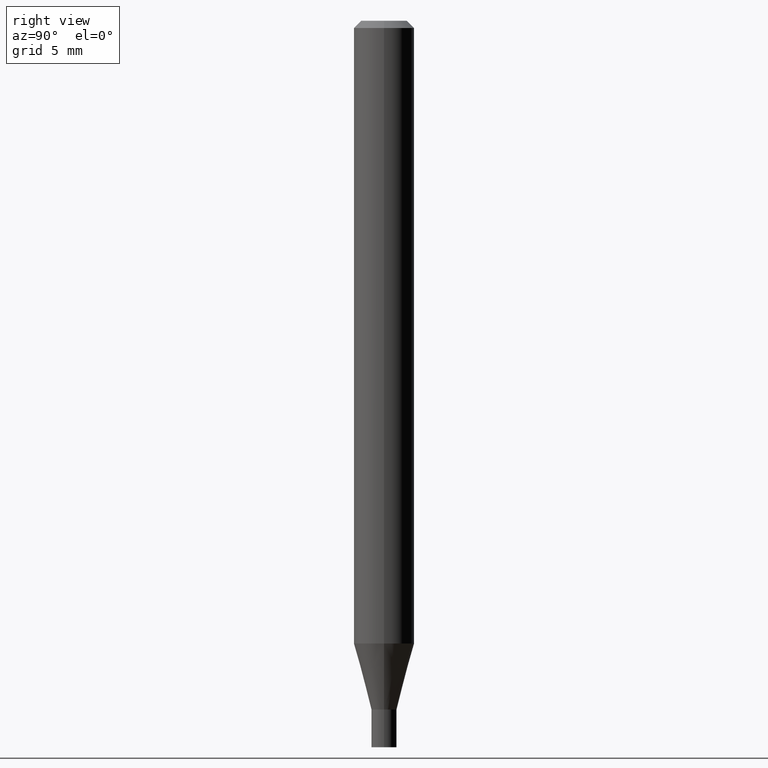
[diagram: clean part render]
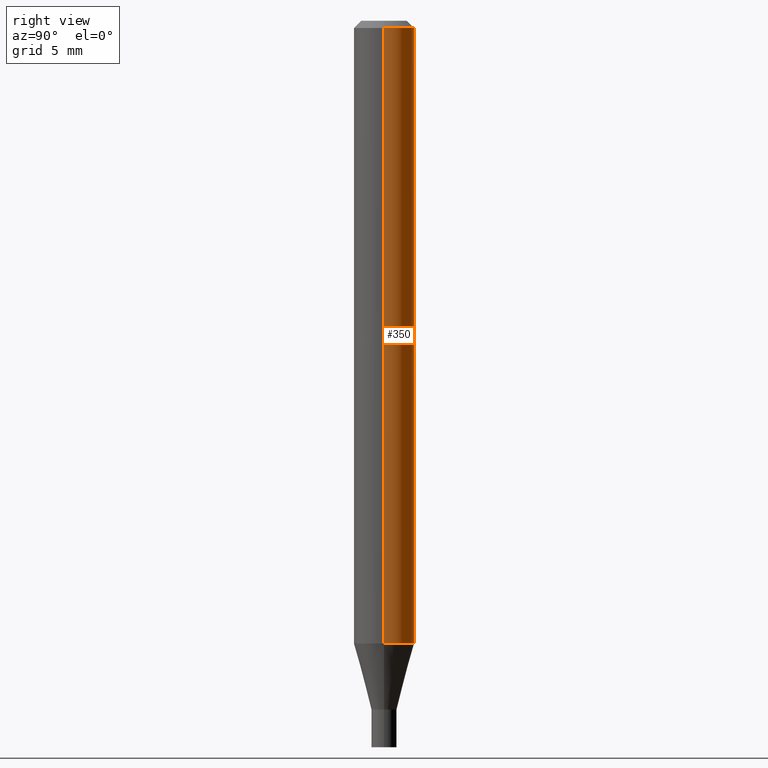
[diagram: same view with one face highlighted and labeled with its STEP entity id]
A machine part, right view. The second image highlights one B-rep face of the part: STEP entity #350.
In plain terms, the highlighted cylindrical surface (edge-blend (fillet) strip) has radius 1.5875 mm, axis along (-0, 0, 1).
Its self-contained STEP definition (entity closure, byte-faithful):
#16 = VECTOR ( 'NONE', #94, 39.37007874015748143 ) ;
#25 = CARTESIAN_POINT ( 'NONE',  ( 0.06250000000000000000, -4.364351673553916694E-16, 3.047610484872459871E-30 ) ) ;
#33 = CARTESIAN_POINT ( 'NONE',  ( 0.000000000000000000, 0.000000000000000000, 0.000000000000000000 ) ) ;
#39 = CARTESIAN_POINT ( 'NONE',  ( 3.144335237490484216E-29, -4.489277383951151768E-15, -1.285780145523736984 ) ) ;
#41 = DIRECTION ( 'NONE',  ( 1.000000000000000000, -6.982962677686262766E-15, 0.000000000000000000 ) ) ;
#58 = CARTESIAN_POINT ( 'NONE',  ( 0.06250000000000000000, -4.925712551306544226E-15, -1.285780145523736984 ) ) ;
#78 = AXIS2_PLACEMENT_3D ( 'NONE', #39, #320, #41 ) ;
#81 = ORIENTED_EDGE ( 'NONE', *, *, #286, .T. ) ;
#94 = DIRECTION ( 'NONE',  ( -2.445468806185136877E-29, 3.491481338843145188E-15, 1.000000000000000000 ) ) ;
#100 = DIRECTION ( 'NONE',  ( -2.445468806185136877E-29, 3.491481338843145188E-15, 1.000000000000000000 ) ) ;
#103 = CIRCLE ( 'NONE', #247, 0.06250000000000000000 ) ;
#117 = EDGE_CURVE ( 'NONE', #130, #380, #257, .T. ) ;
#126 = ORIENTED_EDGE ( 'NONE', *, *, #414, .F. ) ;
#130 = VERTEX_POINT ( 'NONE', #58 ) ;
#135 = CARTESIAN_POINT ( 'NONE',  ( -0.06250000000000000000, 4.440892098500626162E-16, -3.074334431409316114E-30 ) ) ;
#136 = VERTEX_POINT ( 'NONE', #367 ) ;
#163 = ORIENTED_EDGE ( 'NONE', *, *, #234, .F. ) ;
#165 = LINE ( 'NONE', #25, #16 ) ;
#166 = AXIS2_PLACEMENT_3D ( 'NONE', #33, #281, #396 ) ;
#176 = CARTESIAN_POINT ( 'NONE',  ( -0.06250000000000000000, -4.045188174101089941E-15, -1.285780145523736984 ) ) ;
#185 = CARTESIAN_POINT ( 'NONE',  ( 3.668203209277705088E-31, -5.237222008264718399E-17, -0.01499999999999999944 ) ) ;
#198 = CYLINDRICAL_SURFACE ( 'NONE', #166, 0.06250000000000000000 ) ;
#209 = VERTEX_POINT ( 'NONE', #361 ) ;
#223 = DIRECTION ( 'NONE',  ( 1.000000000000000000, -6.982962677686266711E-15, 0.000000000000000000 ) ) ;
#234 = EDGE_CURVE ( 'NONE', #130, #209, #165, .T. ) ;
#242 = ORIENTED_EDGE ( 'NONE', *, *, #117, .T. ) ;
#247 = AXIS2_PLACEMENT_3D ( 'NONE', #185, #287, #223 ) ;
#257 = CIRCLE ( 'NONE', #78, 0.06250000000000000000 ) ;
#281 = DIRECTION ( 'NONE',  ( -2.445468806185136597E-29, 3.491481338843145583E-15, 1.000000000000000000 ) ) ;
#286 = EDGE_CURVE ( 'NONE', #380, #136, #447, .T. ) ;
#287 = DIRECTION ( 'NONE',  ( -2.445468806185136597E-29, 3.491481338843145583E-15, 1.000000000000000000 ) ) ;
#320 = DIRECTION ( 'NONE',  ( -2.445468806185136597E-29, 3.491481338843145583E-15, 1.000000000000000000 ) ) ;
#322 = FACE_OUTER_BOUND ( 'NONE', #346, .T. ) ;
#331 = VECTOR ( 'NONE', #100, 39.37007874015748143 ) ;
#346 = EDGE_LOOP ( 'NONE', ( #242, #81, #126, #163 ) ) ;
#350 = ADVANCED_FACE ( 'NONE', ( #322 ), #198, .T. ) ;
#361 = CARTESIAN_POINT ( 'NONE',  ( 0.06250000000000000000, -4.888073874380388472E-16, -0.01499999999999999944 ) ) ;
#367 = CARTESIAN_POINT ( 'NONE',  ( -0.06250000000000000000, -1.826735592166837005E-15, -0.01499999999999999944 ) ) ;
#380 = VERTEX_POINT ( 'NONE', #176 ) ;
#396 = DIRECTION ( 'NONE',  ( 1.000000000000000000, -6.982962677686266711E-15, 4.876176775795935793E-29 ) ) ;
#414 = EDGE_CURVE ( 'NONE', #209, #136, #103, .T. ) ;
#447 = LINE ( 'NONE', #135, #331 ) ;